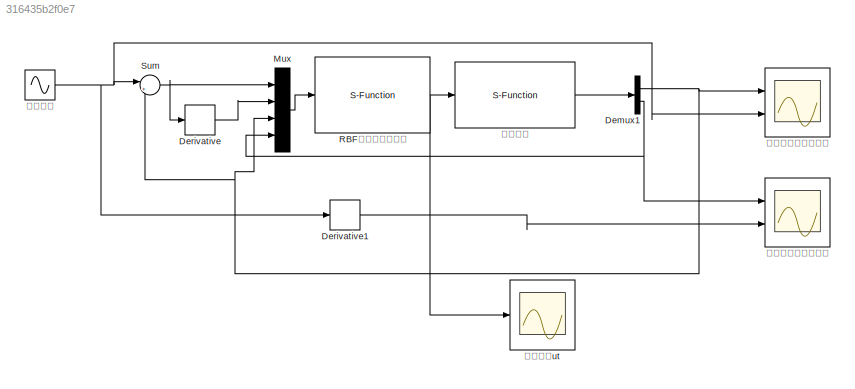
MODEL slx_316435b2f0e7
KIND model
CONFIG AbsTol = auto
CONFIG EnableMultiTasking = off
CONFIG FixedStep = 0.001
CONFIG MaxStep = auto
CONFIG MinStep = auto
CONFIG RelTol = 1e-3
CONFIG SampleTimeConstraint = Unconstrained
CONFIG Solver = ode4
CONFIG SolverName = ode4
CONFIG StartTime = 0.001
CONFIG StopTime = 30
BLOCK [Demux] Demux1
  DisplayOption = bar
  Outputs = 2
  Ports = [1, 2]
BLOCK [Derivative] Derivative
BLOCK [Derivative] Derivative1
BLOCK [Mux] Mux
  DisplayOption = bar
  Ports = [4, 1]
BLOCK [S-Function] RBF神经网络控制器
  EnableBusSupport = off
  FunctionName = Book4341_Controller
  Ports = [1, 1]
  SFcnIsStateOwnerBlock = off
  SFunctionDeploymentMode = off
BLOCK [Sum] Sum
  IconShape = round
  InputSameDT = off
  Inputs = |+-
  OutDataTypeStr = Inherit: Inherit via internal rule
  Ports = [2, 1]
  SaturateOnIntegerOverflow = off
BLOCK [S-Function] 二阶系统
  EnableBusSupport = off
  FunctionName = Book4341_Plant
  Ports = [1, 1]
  SFcnIsStateOwnerBlock = off
  SFunctionDeploymentMode = off
BLOCK [Scope] 控制输入ut
  Floating = off
  NumInputPorts = 1
  Ports = [1]
  ScopeSpecificationString = Simulink.scopes.TimeScopeBlockCfg('CurrentConfiguration', extmgr.ConfigurationSet(extmgr.Configuration('Core','General UI',true,'FigureColor',[1 1 1]),extmgr.Configuration('Core','Source UI',true),extmgr.Configuration('Sources','WiredSimulink',true,'DataLoggingVariableName','ScopeData1'),extmgr.Configuration('Visuals','Time Domain',true,'SerializedDisplays',{struct('MinYLimReal','-1.43308','MaxYLi...<+1555ch>
BLOCK [Scope] 期望位置与实际位置
  Floating = off
  NumInputPorts = 2
  Ports = [2]
  ScopeSpecificationString = Simulink.scopes.TimeScopeBlockCfg('CurrentConfiguration', extmgr.ConfigurationSet(extmgr.Configuration('Core','General UI',true,'FigureColor',[1 1 1]),extmgr.Configuration('Core','Source UI',true),extmgr.Configuration('Sources','WiredSimulink',true,'DataLoggingVariableName','ScopeData2'),extmgr.Configuration('Visuals','Time Domain',true,'SerializedDisplays',{struct('MinYLimReal','-1.26555','MaxYLi...<+1561ch>
BLOCK [Scope] 期望速度与实际速度
  Floating = off
  NumInputPorts = 2
  Ports = [2]
  ScopeSpecificationString = Simulink.scopes.TimeScopeBlockCfg('CurrentConfiguration', extmgr.ConfigurationSet(extmgr.Configuration('Core','General UI',true,'FigureColor',[1 1 1]),extmgr.Configuration('Core','Source UI',true),extmgr.Configuration('Sources','WiredSimulink',true),extmgr.Configuration('Visuals','Time Domain',true,'SerializedDisplays',{struct('MinYLimReal','-2.54297','MaxYLimReal','1.40744','YLabelReal','','MinYL...<+1503ch>
BLOCK [Sin] 跟踪信号
  Ports = [0, 1]
  SampleTime = 0
NET Demux1:1 -> Mux:3, Sum:2, 期望位置与实际位置:1
NET Demux1:2 -> Mux:4, 期望速度与实际速度:1
LINE Derivative1:1 -> 期望速度与实际速度:2
LINE Derivative:1 -> Mux:2
LINE Mux:1 -> RBF神经网络控制器:1
NET RBF神经网络控制器:1 -> 二阶系统:1, 控制输入ut:1
NET Sum:1 -> Derivative:1, Mux:1
LINE 二阶系统:1 -> Demux1:1
NET 跟踪信号:1 -> Derivative1:1, Sum:1, 期望位置与实际位置:2
note: NET lines group one-source signal fan-out (src -> all destinations, sorted); 1:1 wires keep LINE
